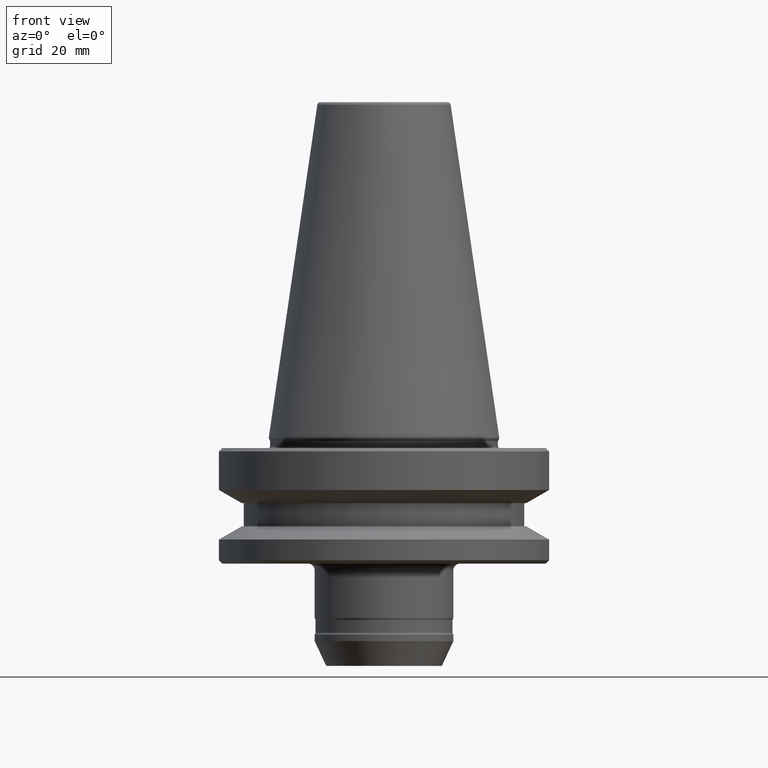
[diagram: clean part render]
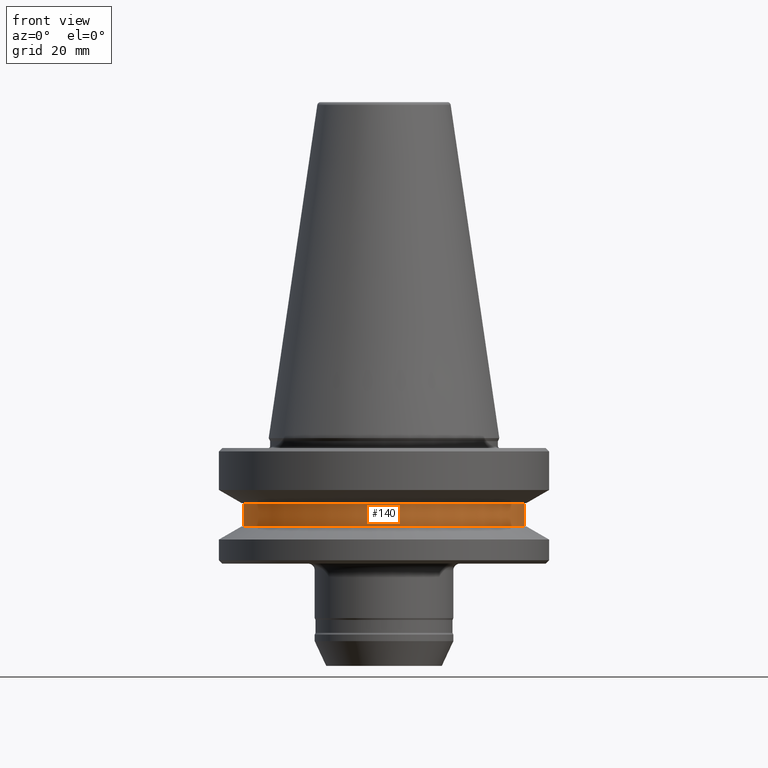
[diagram: same view with one face highlighted and labeled with its STEP entity id]
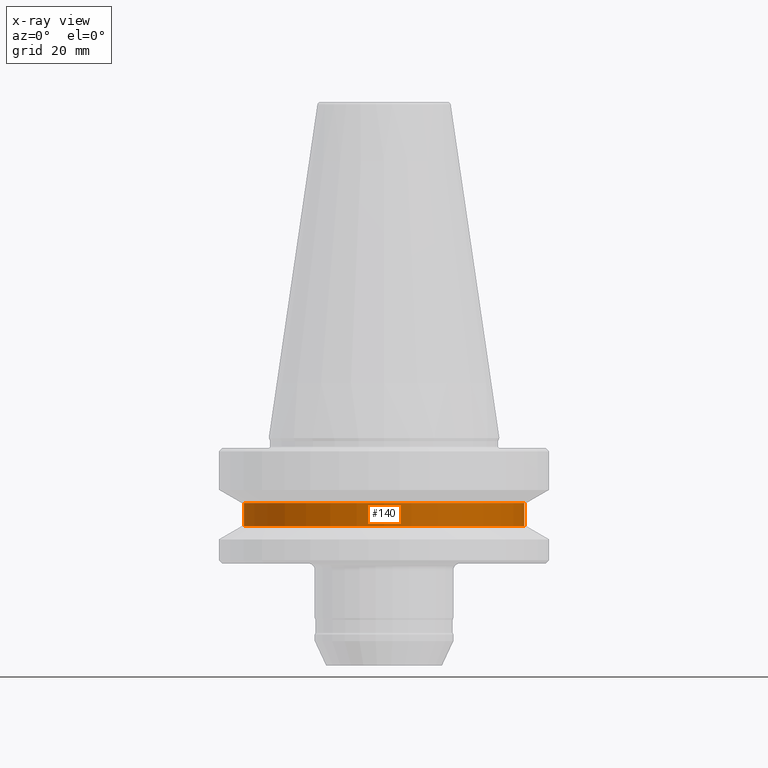
[diagram: x-ray of the same camera — body ghosted, the highlighted face saturated]
A machine part, front view. The second image highlights one B-rep face of the part: STEP entity #140.
The next image is the same camera in x-ray: the body ghosted, the highlighted face saturated — about 0% of this face is hidden behind the body in this view.
In plain terms, the highlighted cylindrical surface (partial cylindrical patch) has radius 42.5 mm, axis along (-0, -0, 1).
Its self-contained STEP definition (entity closure, byte-faithful):
#19 = EDGE_CURVE ( 'NONE', #623, #673, #570, .T. ) ;
#85 = DIRECTION ( 'NONE',  ( -0.0000000000000000000, -0.0000000000000000000, 1.000000000000000000 ) ) ;
#90 = AXIS2_PLACEMENT_3D ( 'NONE', #1180, #1029, #350 ) ;
#136 = DIRECTION ( 'NONE',  ( -0.0000000000000000000, -0.0000000000000000000, 1.000000000000000000 ) ) ;
#140 = ADVANCED_FACE ( 'NONE', ( #485 ), #480, .T. ) ;
#151 = LINE ( 'NONE', #751, #152 ) ;
#152 = VECTOR ( 'NONE', #85, 1000.000000000000000 ) ;
#172 = DIRECTION ( 'NONE',  ( -0.0000000000000000000, -0.0000000000000000000, 1.000000000000000000 ) ) ;
#184 = CARTESIAN_POINT ( 'NONE',  ( -42.49999999999931800, 5.204748896376167300E-015, -26.70000000000061400 ) ) ;
#195 = EDGE_CURVE ( 'NONE', #623, #907, #452, .T. ) ;
#262 = CIRCLE ( 'NONE', #1090, 42.49999999999931800 ) ;
#337 = CARTESIAN_POINT ( 'NONE',  ( -42.49999999999931800, 5.204748896376167300E-015, 132.3443118565871000 ) ) ;
#350 = DIRECTION ( 'NONE',  ( 1.000000000000000000, 0.0000000000000000000, 0.0000000000000000000 ) ) ;
#452 = CIRCLE ( 'NONE', #983, 42.49999999999931800 ) ;
#480 = CYLINDRICAL_SURFACE ( 'NONE', #90, 42.49999999999931800 ) ;
#485 = FACE_OUTER_BOUND ( 'NONE', #994, .T. ) ;
#570 = LINE ( 'NONE', #337, #578 ) ;
#578 = VECTOR ( 'NONE', #648, 1000.000000000000000 ) ;
#623 = VERTEX_POINT ( 'NONE', #184 ) ;
#648 = DIRECTION ( 'NONE',  ( -0.0000000000000000000, -0.0000000000000000000, 1.000000000000000000 ) ) ;
#673 = VERTEX_POINT ( 'NONE', #1047 ) ;
#704 = CARTESIAN_POINT ( 'NONE',  ( 0.0000000000000000000, 0.0000000000000000000, -26.70000000000061400 ) ) ;
#749 = CARTESIAN_POINT ( 'NONE',  ( 0.0000000000000000000, 0.0000000000000000000, -19.70000000000071700 ) ) ;
#751 = CARTESIAN_POINT ( 'NONE',  ( 42.49999999999931800, 0.0000000000000000000, 132.3443118565871000 ) ) ;
#797 = VERTEX_POINT ( 'NONE', #1114 ) ;
#800 = DIRECTION ( 'NONE',  ( 1.000000000000000000, 0.0000000000000000000, 0.0000000000000000000 ) ) ;
#804 = EDGE_CURVE ( 'NONE', #673, #797, #262, .T. ) ;
#813 = CARTESIAN_POINT ( 'NONE',  ( 42.49999999999931800, 0.0000000000000000000, -26.70000000000061400 ) ) ;
#848 = DIRECTION ( 'NONE',  ( 1.000000000000000000, 0.0000000000000000000, 0.0000000000000000000 ) ) ;
#907 = VERTEX_POINT ( 'NONE', #813 ) ;
#912 = ORIENTED_EDGE ( 'NONE', *, *, #19, .F. ) ;
#918 = ORIENTED_EDGE ( 'NONE', *, *, #195, .T. ) ;
#924 = ORIENTED_EDGE ( 'NONE', *, *, #1193, .T. ) ;
#928 = ORIENTED_EDGE ( 'NONE', *, *, #804, .F. ) ;
#983 = AXIS2_PLACEMENT_3D ( 'NONE', #704, #136, #800 ) ;
#994 = EDGE_LOOP ( 'NONE', ( #912, #918, #924, #928 ) ) ;
#1029 = DIRECTION ( 'NONE',  ( -0.0000000000000000000, -0.0000000000000000000, 1.000000000000000000 ) ) ;
#1047 = CARTESIAN_POINT ( 'NONE',  ( -42.49999999999931800, 5.204748896376167300E-015, -19.70000000000071700 ) ) ;
#1090 = AXIS2_PLACEMENT_3D ( 'NONE', #749, #172, #848 ) ;
#1114 = CARTESIAN_POINT ( 'NONE',  ( 42.49999999999931800, 0.0000000000000000000, -19.70000000000071700 ) ) ;
#1180 = CARTESIAN_POINT ( 'NONE',  ( 0.0000000000000000000, 0.0000000000000000000, 132.3443118565871000 ) ) ;
#1193 = EDGE_CURVE ( 'NONE', #907, #797, #151, .T. ) ;